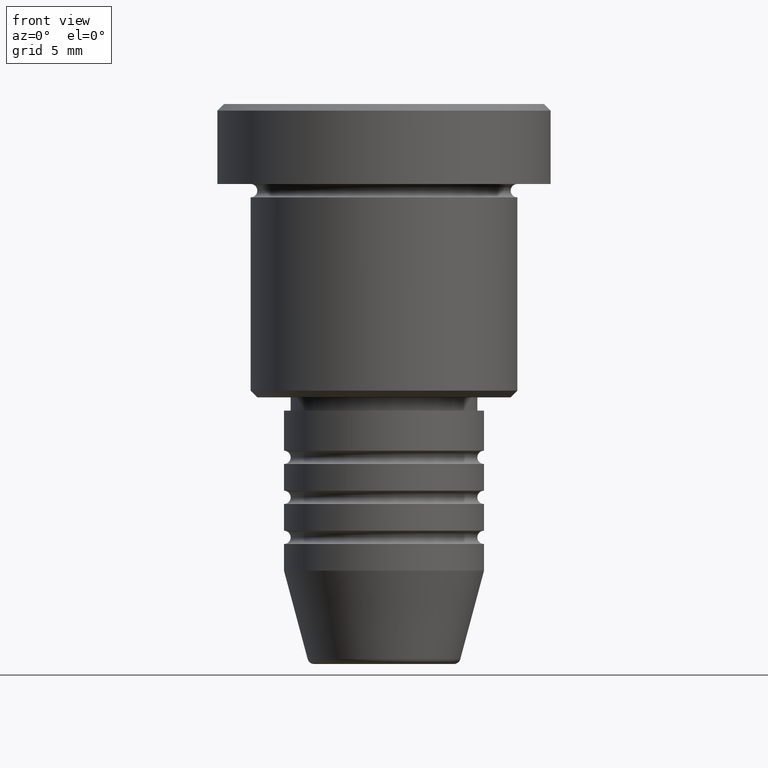
[diagram: clean part render]
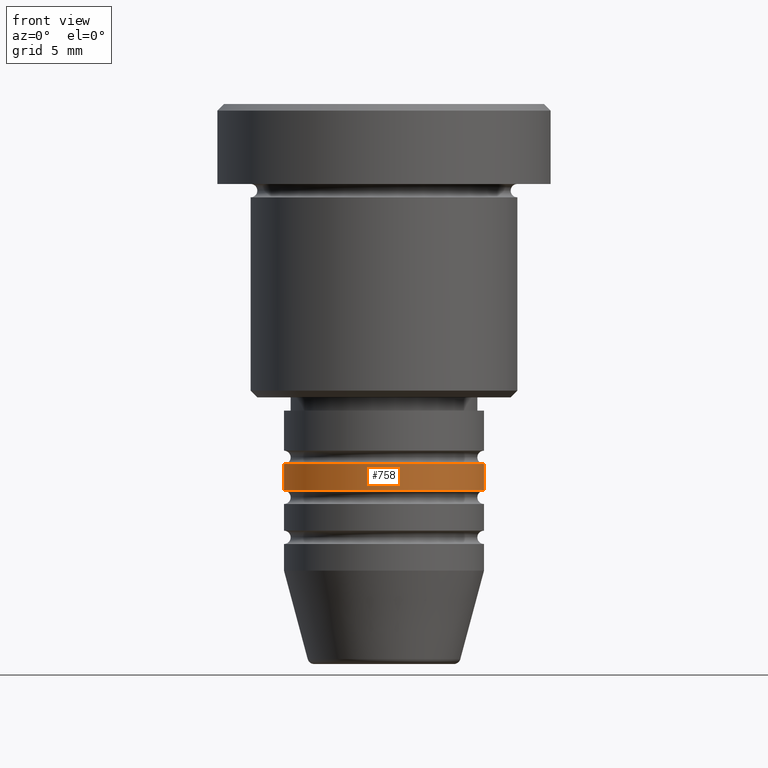
[diagram: same view with one face highlighted and labeled with its STEP entity id]
A machine part, front view. The second image highlights one B-rep face of the part: STEP entity #758.
In plain terms, the highlighted cylindrical surface (partial cylindrical patch) has radius 7.5 mm, axis along (-0, -0, 1).
Its self-contained STEP definition (entity closure, byte-faithful):
#44 = AXIS2_PLACEMENT_3D ( 'NONE', #277, #921, #1004 ) ;
#179 = ORIENTED_EDGE ( 'NONE', *, *, #1127, .T. ) ;
#266 = DIRECTION ( 'NONE',  ( -0.000000000000000000, -0.000000000000000000, 1.000000000000000000 ) ) ;
#277 = CARTESIAN_POINT ( 'NONE',  ( 0.000000000000000000, 0.000000000000000000, -28.99999999999997868 ) ) ;
#286 = EDGE_CURVE ( 'NONE', #565, #442, #1071, .T. ) ;
#336 = AXIS2_PLACEMENT_3D ( 'NONE', #814, #478, #1115 ) ;
#441 = LINE ( 'NONE', #1136, #743 ) ;
#442 = VERTEX_POINT ( 'NONE', #729 ) ;
#466 = FACE_OUTER_BOUND ( 'NONE', #1092, .T. ) ;
#478 = DIRECTION ( 'NONE',  ( -0.000000000000000000, -0.000000000000000000, 1.000000000000000000 ) ) ;
#502 = CARTESIAN_POINT ( 'NONE',  ( 7.500000000000000000, 0.000000000000000000, -28.99999999999997868 ) ) ;
#505 = ORIENTED_EDGE ( 'NONE', *, *, #286, .F. ) ;
#538 = ORIENTED_EDGE ( 'NONE', *, *, #903, .F. ) ;
#541 = DIRECTION ( 'NONE',  ( -0.000000000000000000, -0.000000000000000000, 1.000000000000000000 ) ) ;
#565 = VERTEX_POINT ( 'NONE', #620 ) ;
#620 = CARTESIAN_POINT ( 'NONE',  ( -7.500000000000000000, 9.184850993605147944E-16, -28.99999999999997868 ) ) ;
#667 = AXIS2_PLACEMENT_3D ( 'NONE', #744, #922, #831 ) ;
#703 = CIRCLE ( 'NONE', #667, 7.500000000000000000 ) ;
#729 = CARTESIAN_POINT ( 'NONE',  ( -7.500000000000000000, 9.184850993605147944E-16, -26.99999999999997868 ) ) ;
#741 = VECTOR ( 'NONE', #266, 1000.000000000000000 ) ;
#743 = VECTOR ( 'NONE', #541, 1000.000000000000000 ) ;
#744 = CARTESIAN_POINT ( 'NONE',  ( 0.000000000000000000, 0.000000000000000000, -26.99999999999997868 ) ) ;
#758 = ADVANCED_FACE ( 'NONE', ( #466 ), #828, .T. ) ;
#809 = CARTESIAN_POINT ( 'NONE',  ( -7.500000000000000000, 9.184850993605147944E-16, 0.000000000000000000 ) ) ;
#814 = CARTESIAN_POINT ( 'NONE',  ( 0.000000000000000000, 0.000000000000000000, 0.000000000000000000 ) ) ;
#823 = EDGE_CURVE ( 'NONE', #1047, #826, #441, .T. ) ;
#826 = VERTEX_POINT ( 'NONE', #1043 ) ;
#828 = CYLINDRICAL_SURFACE ( 'NONE', #336, 7.500000000000000000 ) ;
#831 = DIRECTION ( 'NONE',  ( 1.000000000000000000, 0.000000000000000000, 0.000000000000000000 ) ) ;
#839 = CIRCLE ( 'NONE', #44, 7.500000000000000000 ) ;
#903 = EDGE_CURVE ( 'NONE', #442, #826, #703, .T. ) ;
#920 = ORIENTED_EDGE ( 'NONE', *, *, #823, .T. ) ;
#921 = DIRECTION ( 'NONE',  ( -0.000000000000000000, -0.000000000000000000, 1.000000000000000000 ) ) ;
#922 = DIRECTION ( 'NONE',  ( -0.000000000000000000, -0.000000000000000000, 1.000000000000000000 ) ) ;
#1004 = DIRECTION ( 'NONE',  ( 1.000000000000000000, 0.000000000000000000, 0.000000000000000000 ) ) ;
#1043 = CARTESIAN_POINT ( 'NONE',  ( 7.500000000000000000, 0.000000000000000000, -26.99999999999997868 ) ) ;
#1047 = VERTEX_POINT ( 'NONE', #502 ) ;
#1071 = LINE ( 'NONE', #809, #741 ) ;
#1092 = EDGE_LOOP ( 'NONE', ( #505, #179, #920, #538 ) ) ;
#1115 = DIRECTION ( 'NONE',  ( 1.000000000000000000, 0.000000000000000000, 0.000000000000000000 ) ) ;
#1127 = EDGE_CURVE ( 'NONE', #565, #1047, #839, .T. ) ;
#1136 = CARTESIAN_POINT ( 'NONE',  ( 7.500000000000000000, 0.000000000000000000, 0.000000000000000000 ) ) ;